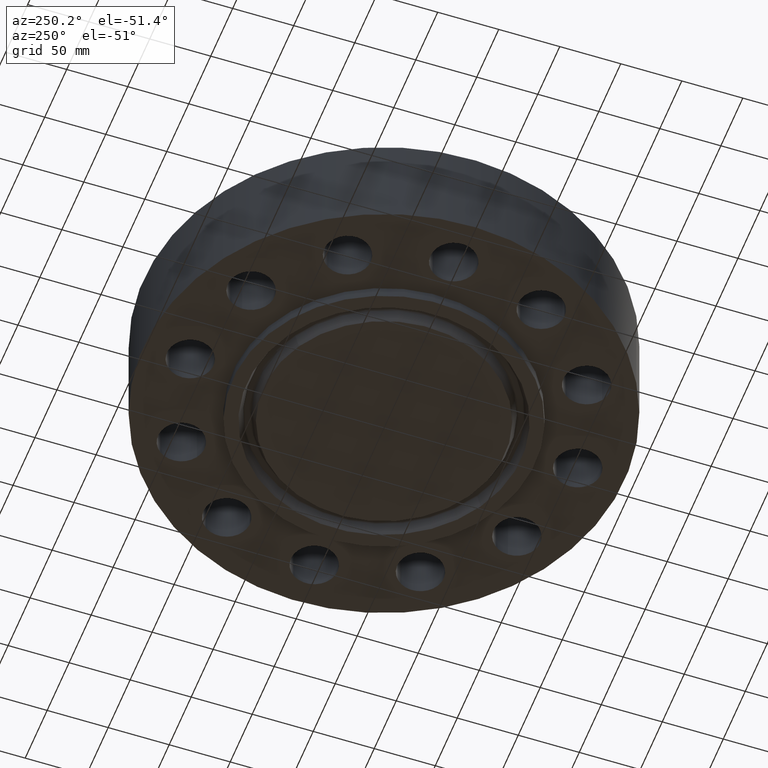
[diagram: clean part render]
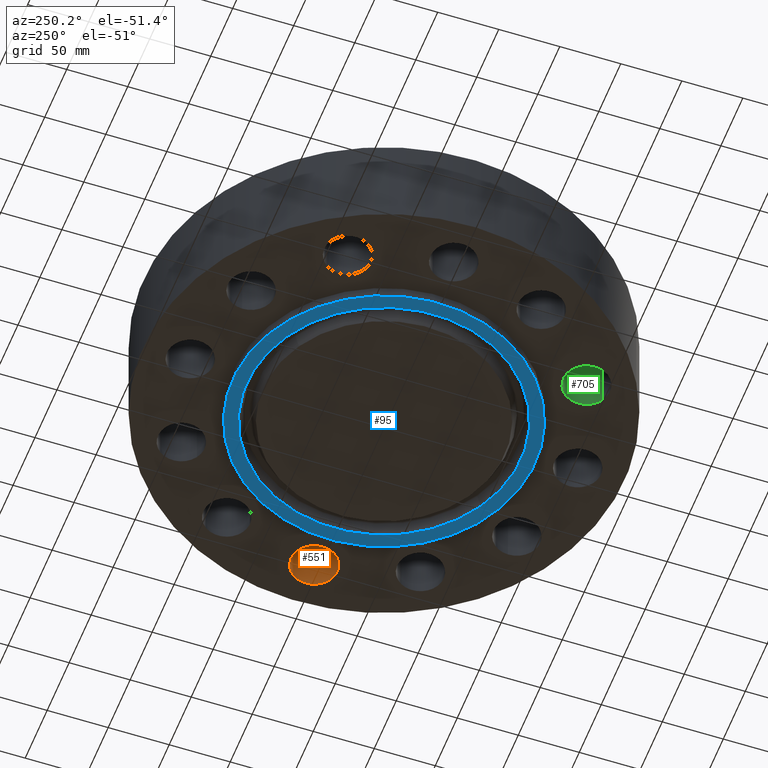
[diagram: same view with three faces highlighted in distinct colors, each labeled with its STEP entity id]
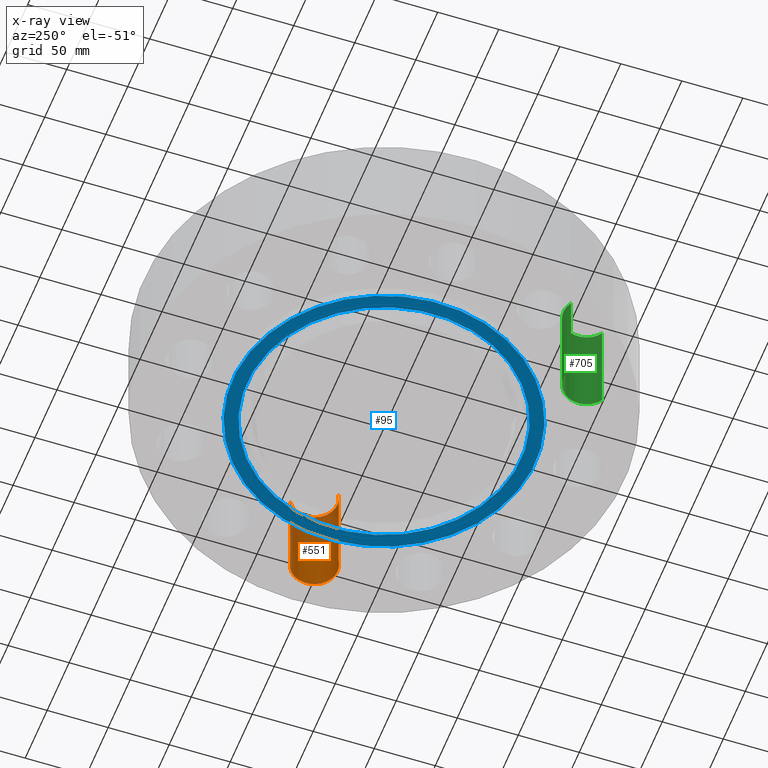
[diagram: x-ray of the same camera — body ghosted, the three highlighted faces saturated]
A machine part, auxiliary view with three faces highlighted in distinct colors.
The next image is the same camera in x-ray (body ghosted, the three faces saturated) — at least one of them is partly hidden behind the body in this view.
Their STEP definitions:

[orange] entity #551 — the highlighted cylindrical surface (edge-blend (fillet) strip) has radius 19.05 mm, axis along (0, -0, -1).
#498=AXIS2_PLACEMENT_3D('Cylinder Axis2P3D',#495,#496,#497) ;
#537=AXIS2_PLACEMENT_3D('Circle Axis2P3D',#535,#536,$) ;
#542=AXIS2_PLACEMENT_3D('Circle Axis2P3D',#540,#541,$) ;
#495=CARTESIAN_POINT('Axis2P3D Location',(6.25000000003,-7.3626281347E-016,3.24606299214)) ;
#500=CARTESIAN_POINT('Line Origine',(5.89043084607,-0.65818692142,1.62500000001)) ;
#504=CARTESIAN_POINT('Vertex',(5.89043084607,-0.65818692142,0.)) ;
#506=CARTESIAN_POINT('Vertex',(5.89043084607,-0.65818692142,3.25000000001)) ;
#513=CARTESIAN_POINT('Vertex',(6.60956915398,0.65818692142,0.)) ;
#516=CARTESIAN_POINT('Line Origine',(6.60956915398,0.65818692142,1.62500000001)) ;
#520=CARTESIAN_POINT('Vertex',(6.60956915398,0.65818692142,3.25000000001)) ;
#535=CARTESIAN_POINT('Axis2P3D Location',(6.25000000003,-7.3626281347E-016,0.)) ;
#540=CARTESIAN_POINT('Axis2P3D Location',(6.25000000003,-7.3626281347E-016,3.25000000001)) ;
#496=DIRECTION('Axis2P3D Direction',(0.,-0.,-0.0393700787402)) ;
#497=DIRECTION('Axis2P3D XDirection',(0.0188750212049,0.0345504945626,-0.)) ;
#501=DIRECTION('Vector Direction',(0.,0.,-0.0393700787402)) ;
#517=DIRECTION('Vector Direction',(0.,0.,-0.0393700787402)) ;
#536=DIRECTION('Axis2P3D Direction',(0.,-0.,-0.0393700787402)) ;
#541=DIRECTION('Axis2P3D Direction',(0.,-0.,-0.0393700787402)) ;
#502=VECTOR('Line Direction',#501,0.0393700787402) ;
#518=VECTOR('Line Direction',#517,0.0393700787402) ;
#546=ORIENTED_EDGE('',*,*,#522,.F.) ;
#547=ORIENTED_EDGE('',*,*,#539,.T.) ;
#548=ORIENTED_EDGE('',*,*,#508,.T.) ;
#549=ORIENTED_EDGE('',*,*,#544,.F.) ;
#551=ADVANCED_FACE('PartBody',(#550),#499,.F.) ;
#538=CIRCLE('generated circle',#537,0.750000000003) ;
#543=CIRCLE('generated circle',#542,0.750000000003) ;
#499=CYLINDRICAL_SURFACE('generated cylinder',#498,0.750000000003) ;
#508=EDGE_CURVE('',#505,#507,#503,.F.) ;
#522=EDGE_CURVE('',#514,#521,#519,.F.) ;
#539=EDGE_CURVE('',#514,#505,#538,.T.) ;
#544=EDGE_CURVE('',#521,#507,#543,.T.) ;
#545=EDGE_LOOP('',(#546,#547,#548,#549)) ;
#550=FACE_OUTER_BOUND('',#545,.T.) ;
#503=LINE('Line',#500,#502) ;
#519=LINE('Line',#516,#518) ;
#505=VERTEX_POINT('',#504) ;
#507=VERTEX_POINT('',#506) ;
#514=VERTEX_POINT('',#513) ;
#521=VERTEX_POINT('',#520) ;

[blue] entity #95 — the highlighted planar face has unit normal (0, 0, -1).
#38=AXIS2_PLACEMENT_3D('Plane Axis2P3D',#35,#36,#37) ;
#61=AXIS2_PLACEMENT_3D('Circle Axis2P3D',#59,#60,$) ;
#70=AXIS2_PLACEMENT_3D('Circle Axis2P3D',#68,#69,$) ;
#79=AXIS2_PLACEMENT_3D('Circle Axis2P3D',#77,#78,$) ;
#88=AXIS2_PLACEMENT_3D('Circle Axis2P3D',#86,#87,$) ;
#35=CARTESIAN_POINT('Axis2P3D Location',(0.,0.,-0.375000000001)) ;
#59=CARTESIAN_POINT('Axis2P3D Location',(0.,0.,-0.375000000001)) ;
#63=CARTESIAN_POINT('Vertex',(2.3371995007,4.27821498923,-0.375000000002)) ;
#65=CARTESIAN_POINT('Vertex',(-2.3371995007,-4.27821498923,-0.375000000002)) ;
#68=CARTESIAN_POINT('Axis2P3D Location',(0.,0.,-0.375000000001)) ;
#77=CARTESIAN_POINT('Axis2P3D Location',(2.79741234551E-016,0.,-0.375000000001)) ;
#81=CARTESIAN_POINT('Vertex',(2.12001973172,-3.88067008869,-0.375000000001)) ;
#83=CARTESIAN_POINT('Vertex',(-2.12001973172,3.88067008869,-0.375000000001)) ;
#86=CARTESIAN_POINT('Axis2P3D Location',(-2.79741234551E-016,-1.67844740731E-015,-0.375000000001)) ;
#36=DIRECTION('Axis2P3D Direction',(0.,0.,-0.0393700787402)) ;
#37=DIRECTION('Axis2P3D XDirection',(0.0393700787402,0.,0.)) ;
#60=DIRECTION('Axis2P3D Direction',(0.,0.,-0.0393700787402)) ;
#69=DIRECTION('Axis2P3D Direction',(0.,0.,-0.0393700787402)) ;
#78=DIRECTION('Axis2P3D Direction',(0.,0.,-0.0393700787402)) ;
#87=DIRECTION('Axis2P3D Direction',(0.,0.,-0.0393700787402)) ;
#74=ORIENTED_EDGE('',*,*,#67,.T.) ;
#75=ORIENTED_EDGE('',*,*,#72,.T.) ;
#92=ORIENTED_EDGE('',*,*,#85,.F.) ;
#93=ORIENTED_EDGE('',*,*,#90,.F.) ;
#94=FACE_BOUND('',#91,.T.) ;
#95=ADVANCED_FACE('PartBody',(#76,#94),#39,.T.) ;
#62=CIRCLE('generated circle',#61,4.87500000002) ;
#71=CIRCLE('generated circle',#70,4.87500000002) ;
#80=CIRCLE('generated circle',#79,4.42200000002) ;
#89=CIRCLE('generated circle',#88,4.42200000002) ;
#67=EDGE_CURVE('',#64,#66,#62,.T.) ;
#72=EDGE_CURVE('',#66,#64,#71,.T.) ;
#85=EDGE_CURVE('',#82,#84,#80,.T.) ;
#90=EDGE_CURVE('',#84,#82,#89,.T.) ;
#73=EDGE_LOOP('',(#74,#75)) ;
#91=EDGE_LOOP('',(#92,#93)) ;
#76=FACE_OUTER_BOUND('',#73,.T.) ;
#39=PLANE('',#38) ;
#64=VERTEX_POINT('',#63) ;
#66=VERTEX_POINT('',#65) ;
#82=VERTEX_POINT('',#81) ;
#84=VERTEX_POINT('',#83) ;

[green] entity #705 — the highlighted cylindrical surface (edge-blend (fillet) strip) has radius 19.05 mm, axis along (0, 0, -1).
#669=AXIS2_PLACEMENT_3D('Cylinder Axis2P3D',#666,#667,#668) ;
#682=AXIS2_PLACEMENT_3D('Circle Axis2P3D',#680,#681,$) ;
#696=AXIS2_PLACEMENT_3D('Circle Axis2P3D',#694,#695,$) ;
#666=CARTESIAN_POINT('Axis2P3D Location',(-3.12500000001,-5.41265877367,3.24606299214)) ;
#671=CARTESIAN_POINT('Line Origine',(-3.51522201742,-4.77216929122,1.62500000001)) ;
#675=CARTESIAN_POINT('Vertex',(-3.51522201742,-4.77216929122,0.)) ;
#677=CARTESIAN_POINT('Vertex',(-3.51522201742,-4.77216929122,3.25000000001)) ;
#680=CARTESIAN_POINT('Axis2P3D Location',(-3.12500000001,-5.41265877367,0.)) ;
#684=CARTESIAN_POINT('Vertex',(-2.7347779826,-6.05314825613,0.)) ;
#687=CARTESIAN_POINT('Line Origine',(-2.7347779826,-6.05314825613,1.62500000001)) ;
#691=CARTESIAN_POINT('Vertex',(-2.7347779826,-6.05314825613,3.25000000001)) ;
#694=CARTESIAN_POINT('Axis2P3D Location',(-3.12500000001,-5.41265877367,3.25000000001)) ;
#667=DIRECTION('Axis2P3D Direction',(0.,0.,-0.0393700787402)) ;
#668=DIRECTION('Axis2P3D XDirection',(0.0204840954021,-0.0336214951417,-0.)) ;
#672=DIRECTION('Vector Direction',(0.,0.,-0.0393700787402)) ;
#681=DIRECTION('Axis2P3D Direction',(0.,0.,-0.0393700787402)) ;
#688=DIRECTION('Vector Direction',(0.,0.,-0.0393700787402)) ;
#695=DIRECTION('Axis2P3D Direction',(0.,0.,-0.0393700787402)) ;
#673=VECTOR('Line Direction',#672,0.0393700787402) ;
#689=VECTOR('Line Direction',#688,0.0393700787402) ;
#700=ORIENTED_EDGE('',*,*,#679,.F.) ;
#701=ORIENTED_EDGE('',*,*,#686,.T.) ;
#702=ORIENTED_EDGE('',*,*,#693,.T.) ;
#703=ORIENTED_EDGE('',*,*,#698,.F.) ;
#705=ADVANCED_FACE('PartBody',(#704),#670,.F.) ;
#683=CIRCLE('generated circle',#682,0.750000000003) ;
#697=CIRCLE('generated circle',#696,0.750000000003) ;
#670=CYLINDRICAL_SURFACE('generated cylinder',#669,0.750000000003) ;
#679=EDGE_CURVE('',#676,#678,#674,.F.) ;
#686=EDGE_CURVE('',#676,#685,#683,.T.) ;
#693=EDGE_CURVE('',#685,#692,#690,.F.) ;
#698=EDGE_CURVE('',#678,#692,#697,.T.) ;
#699=EDGE_LOOP('',(#700,#701,#702,#703)) ;
#704=FACE_OUTER_BOUND('',#699,.T.) ;
#674=LINE('Line',#671,#673) ;
#690=LINE('Line',#687,#689) ;
#676=VERTEX_POINT('',#675) ;
#678=VERTEX_POINT('',#677) ;
#685=VERTEX_POINT('',#684) ;
#692=VERTEX_POINT('',#691) ;